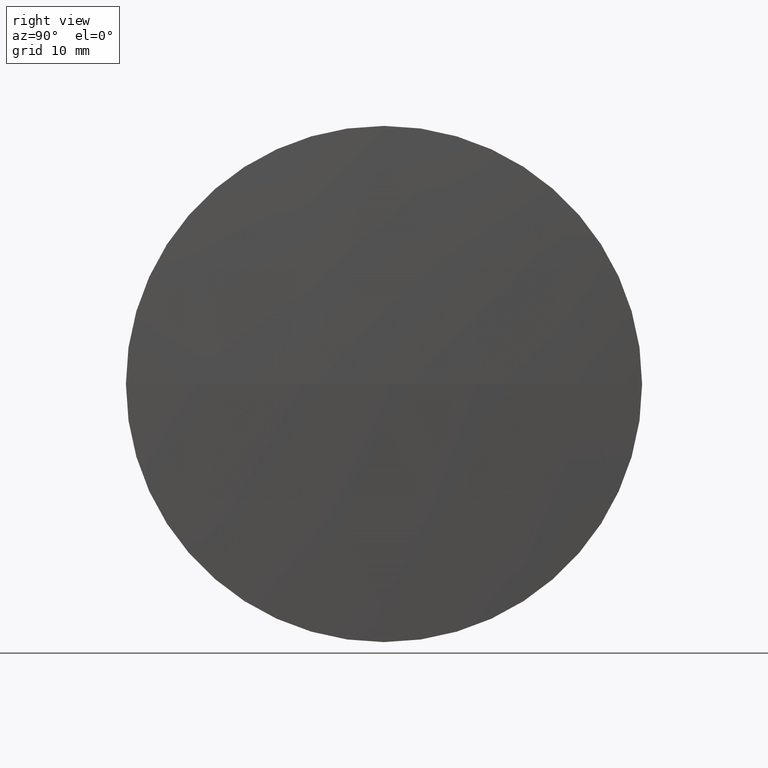
[diagram: clean part render]
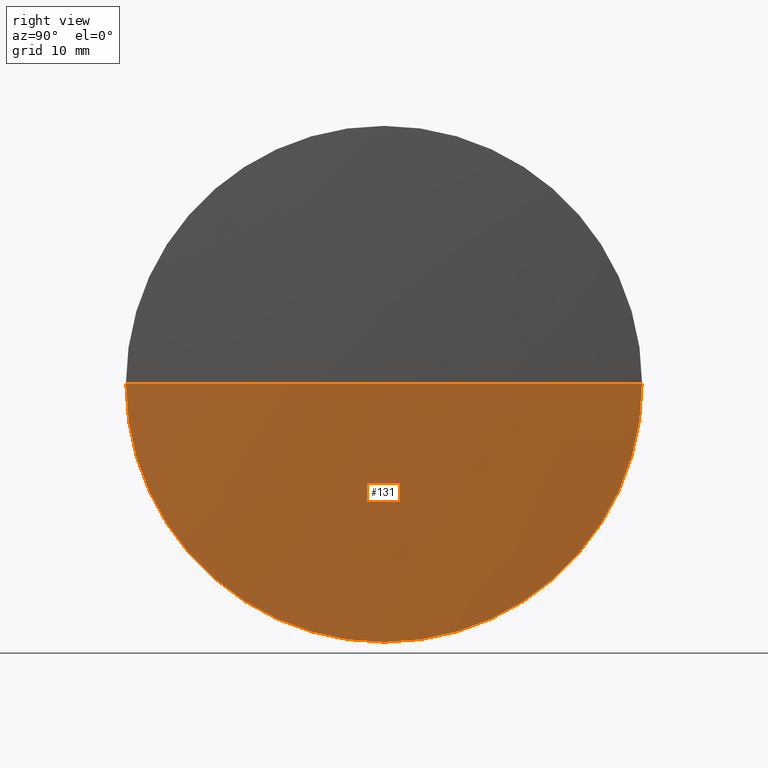
[diagram: same view with one face highlighted and labeled with its STEP entity id]
A machine part, right view. The second image highlights one B-rep face of the part: STEP entity #131.
In plain terms, the highlighted spherical surface has radius 461.168 mm.
Its self-contained STEP definition (entity closure, byte-faithful):
#1 = CARTESIAN_POINT ( 'NONE',  ( 175.1163831493249700, 97.23222604636886500, 0.0000000000000000000 ) ) ;
#3 = EDGE_CURVE ( 'NONE', #310, #177, #70, .T. ) ;
#6 = DIRECTION ( 'NONE',  ( 0.0000000000000000000, 0.0000000000000000000, 1.000000000000000000 ) ) ;
#22 = EDGE_LOOP ( 'NONE', ( #168, #48, #42, #78 ) ) ;
#37 = CARTESIAN_POINT ( 'NONE',  ( 174.4163664064679400, 97.23222604636956100, 0.0000000000000000000 ) ) ;
#42 = ORIENTED_EDGE ( 'NONE', *, *, #136, .F. ) ;
#44 = AXIS2_PLACEMENT_3D ( 'NONE', #37, #81, #6 ) ;
#48 = ORIENTED_EDGE ( 'NONE', *, *, #332, .T. ) ;
#53 = DIRECTION ( 'NONE',  ( -1.000000000000000000, -0.0000000000000000000, -0.0000000000000000000 ) ) ;
#55 = VERTEX_POINT ( 'NONE', #265 ) ;
#70 = CIRCLE ( 'NONE', #189, 25.39999999999999100 ) ;
#71 = AXIS2_PLACEMENT_3D ( 'NONE', #190, #162, #82 ) ;
#78 = ORIENTED_EDGE ( 'NONE', *, *, #3, .F. ) ;
#81 = DIRECTION ( 'NONE',  ( -1.000000000000000000, -0.0000000000000000000, -0.0000000000000000000 ) ) ;
#82 = DIRECTION ( 'NONE',  ( 1.000000000000000000, 0.0000000000000000000, 0.0000000000000000000 ) ) ;
#88 = SPHERICAL_SURFACE ( 'NONE', #130, 461.1675577966340100 ) ;
#111 = DIRECTION ( 'NONE',  ( -0.0000000000000000000, 0.0000000000000000000, -1.000000000000000000 ) ) ;
#130 = AXIS2_PLACEMENT_3D ( 'NONE', #160, #111, #267 ) ;
#131 = ADVANCED_FACE ( 'NONE', ( #275 ), #88, .T. ) ;
#136 = EDGE_CURVE ( 'NONE', #177, #55, #171, .T. ) ;
#142 = CARTESIAN_POINT ( 'NONE',  ( 174.4163664064679700, 122.6322260463689700, 0.0000000000000000000 ) ) ;
#147 = VERTEX_POINT ( 'NONE', #1 ) ;
#152 = CIRCLE ( 'NONE', #71, 461.1675577966340100 ) ;
#158 = CARTESIAN_POINT ( 'NONE',  ( 174.4163664064679400, 97.23222604636956100, 0.0000000000000000000 ) ) ;
#160 = CARTESIAN_POINT ( 'NONE',  ( -286.0511746473089800, 97.23222604636883700, 0.0000000000000000000 ) ) ;
#162 = DIRECTION ( 'NONE',  ( -0.0000000000000000000, 0.0000000000000000000, 1.000000000000000000 ) ) ;
#168 = ORIENTED_EDGE ( 'NONE', *, *, #185, .F. ) ;
#171 = CIRCLE ( 'NONE', #44, 25.39999999999999100 ) ;
#177 = VERTEX_POINT ( 'NONE', #295 ) ;
#183 = DIRECTION ( 'NONE',  ( 0.0000000000000000000, 0.0000000000000000000, 1.000000000000000000 ) ) ;
#185 = EDGE_CURVE ( 'NONE', #147, #310, #152, .T. ) ;
#189 = AXIS2_PLACEMENT_3D ( 'NONE', #158, #53, #183 ) ;
#190 = CARTESIAN_POINT ( 'NONE',  ( -286.0511746473089800, 97.23222604636883700, 0.0000000000000000000 ) ) ;
#219 = DIRECTION ( 'NONE',  ( 0.0000000000000000000, 1.224646799147353200E-016, -1.000000000000000000 ) ) ;
#265 = CARTESIAN_POINT ( 'NONE',  ( 174.4163664064679700, 71.83222604636942800, -3.110602869834204700E-015 ) ) ;
#267 = DIRECTION ( 'NONE',  ( 0.0000000000000000000, 1.000000000000000000, 0.0000000000000000000 ) ) ;
#275 = FACE_OUTER_BOUND ( 'NONE', #22, .T. ) ;
#295 = CARTESIAN_POINT ( 'NONE',  ( 174.4163664064679400, 97.23222604636956100, -25.39999999999999100 ) ) ;
#298 = CARTESIAN_POINT ( 'NONE',  ( -286.0511746473089800, 97.23222604636883700, 0.0000000000000000000 ) ) ;
#299 = DIRECTION ( 'NONE',  ( 0.0000000000000000000, 1.000000000000000000, 1.224646799147353200E-016 ) ) ;
#310 = VERTEX_POINT ( 'NONE', #142 ) ;
#312 = AXIS2_PLACEMENT_3D ( 'NONE', #298, #219, #299 ) ;
#332 = EDGE_CURVE ( 'NONE', #147, #55, #334, .T. ) ;
#334 = CIRCLE ( 'NONE', #312, 461.1675577966340100 ) ;